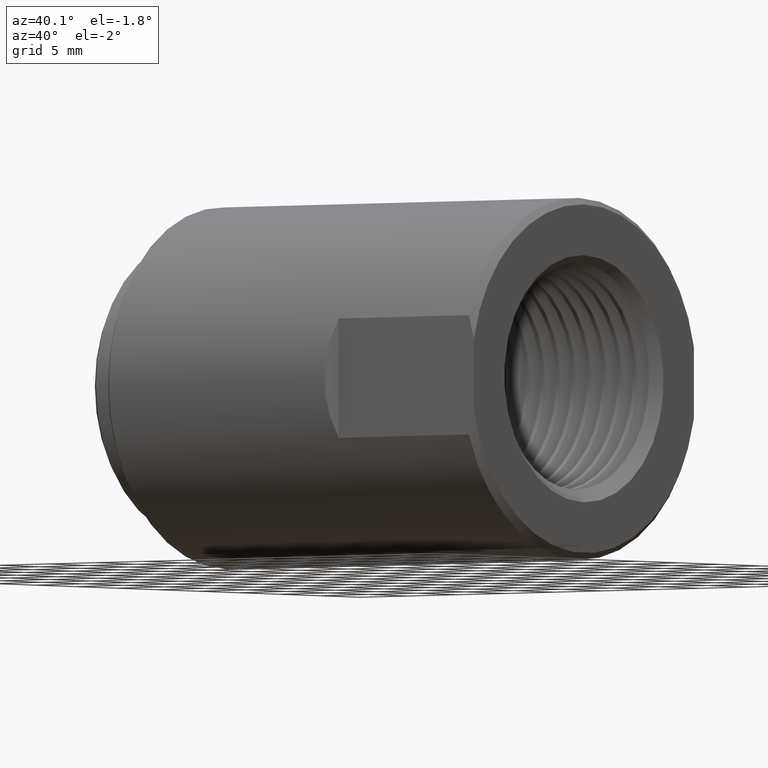
[diagram: clean part render]
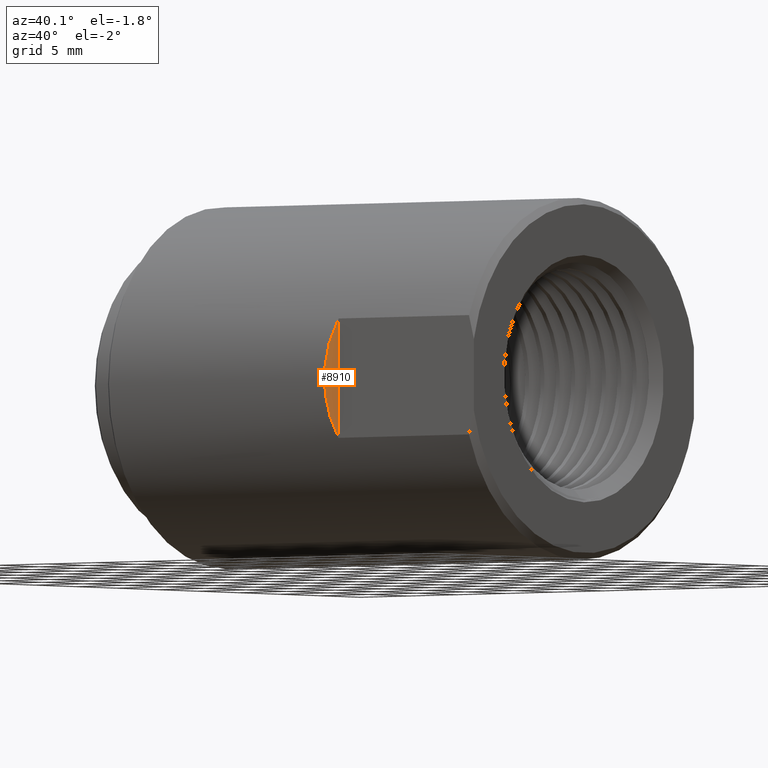
[diagram: same view with one face highlighted and labeled with its STEP entity id]
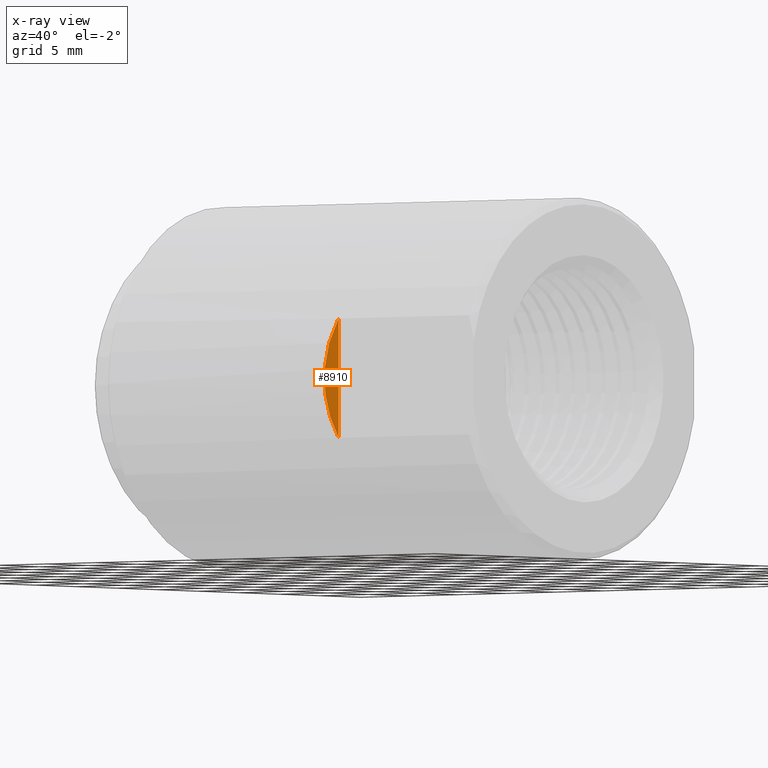
[diagram: x-ray of the same camera — body ghosted, the highlighted face saturated]
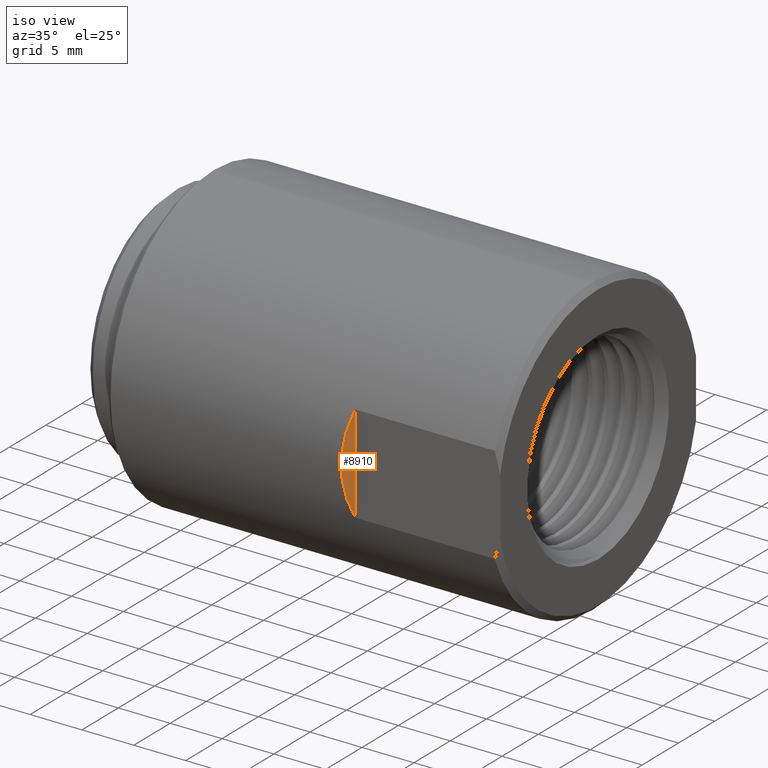
[diagram: same view with one face highlighted and labeled with its STEP entity id]
A machine part, auxiliary view. The second image highlights one B-rep face of the part: STEP entity #8910.
The next image is the same camera in x-ray: the body ghosted, the highlighted face saturated — about 0% of this face is hidden behind the body in this view.
A second angle (iso view) of the same face is appended — the face is thin or edge-on in the first view.
In plain terms, the highlighted planar face has unit normal (-0.7071, 0.7071, 0).
Its self-contained STEP definition (entity closure, byte-faithful):
#390 = CARTESIAN_POINT ( 'NONE',  ( 0.6575928353799280757, -0.5734571646200720130, 0.06426667657527347643 ) ) ;
#753 = EDGE_LOOP ( 'NONE', ( #11848, #5234 ) ) ;
#1583 = CARTESIAN_POINT ( 'NONE',  ( 0.6999999999999999556, -0.5310500000000000220, -0.5625499999999999945 ) ) ;
#1757 = DIRECTION ( 'NONE',  ( -0.7071067811865466846, -0.7071067811865483499, 0.0000000000000000000 ) ) ;
#2713 = CARTESIAN_POINT ( 'NONE',  ( 0.6999999999999999556, -0.5310500000000000220, 0.1856028017029912325 ) ) ;
#3002 = EDGE_CURVE ( 'NONE', #10271, #11112, #11312, .T. ) ;
#4053 = CARTESIAN_POINT ( 'NONE',  ( 0.6575928353799280757, -0.5734571646200720130, -0.06426667657527332378 ) ) ;
#4450 = DIRECTION ( 'NONE',  ( -0.7071067811865483499, 0.7071067811865466846, 0.0000000000000000000 ) ) ;
#4747 = DIRECTION ( 'NONE',  ( -0.0000000000000000000, -0.0000000000000000000, 1.000000000000000000 ) ) ;
#4947 = FACE_OUTER_BOUND ( 'NONE', #753, .T. ) ;
#5234 = ORIENTED_EDGE ( 'NONE', *, *, #3002, .T. ) ;
#5638 = VECTOR ( 'NONE', #4747, 39.37007874015748143 ) ;
#5848 = CARTESIAN_POINT ( 'NONE',  ( 0.6999999999999999556, -0.5310500000000000220, 0.1856028017029912325 ) ) ;
#7415 = AXIS2_PLACEMENT_3D ( 'NONE', #1583, #4450, #1757 ) ;
#7565 = EDGE_CURVE ( 'NONE', #11112, #10271, #10596, .T. ) ;
#7627 = CARTESIAN_POINT ( 'NONE',  ( 0.6999999999999999556, -0.5310500000000000220, -0.1856028017029916488 ) ) ;
#8123 = PLANE ( 'NONE',  #7415 ) ;
#8910 = ADVANCED_FACE ( 'NONE', ( #4947 ), #8123, .F. ) ;
#10271 = VERTEX_POINT ( 'NONE', #7627 ) ;
#10343 = CARTESIAN_POINT ( 'NONE',  ( 0.6999999999999999556, -0.5310500000000000220, -0.5625499999999999945 ) ) ;
#10596 =( BOUNDED_CURVE ( )  B_SPLINE_CURVE ( 3, ( #5848, #390, #4053, #11465 ),
 .UNSPECIFIED., .F., .T. ) 
 B_SPLINE_CURVE_WITH_KNOTS ( ( 4, 4 ),
 ( 5.946954604240748843, 6.619416010118423621 ),
 .UNSPECIFIED. ) 
 CURVE ( )  GEOMETRIC_REPRESENTATION_ITEM ( )  RATIONAL_B_SPLINE_CURVE ( ( 1.000000000000000000, 0.9626699848902320333, 0.9626699848902320333, 1.000000000000000000 ) ) 
 REPRESENTATION_ITEM ( '' )  );
#11112 = VERTEX_POINT ( 'NONE', #2713 ) ;
#11312 = LINE ( 'NONE', #10343, #5638 ) ;
#11465 = CARTESIAN_POINT ( 'NONE',  ( 0.6999999999999999556, -0.5310500000000000220, -0.1856028017029916488 ) ) ;
#11848 = ORIENTED_EDGE ( 'NONE', *, *, #7565, .T. ) ;